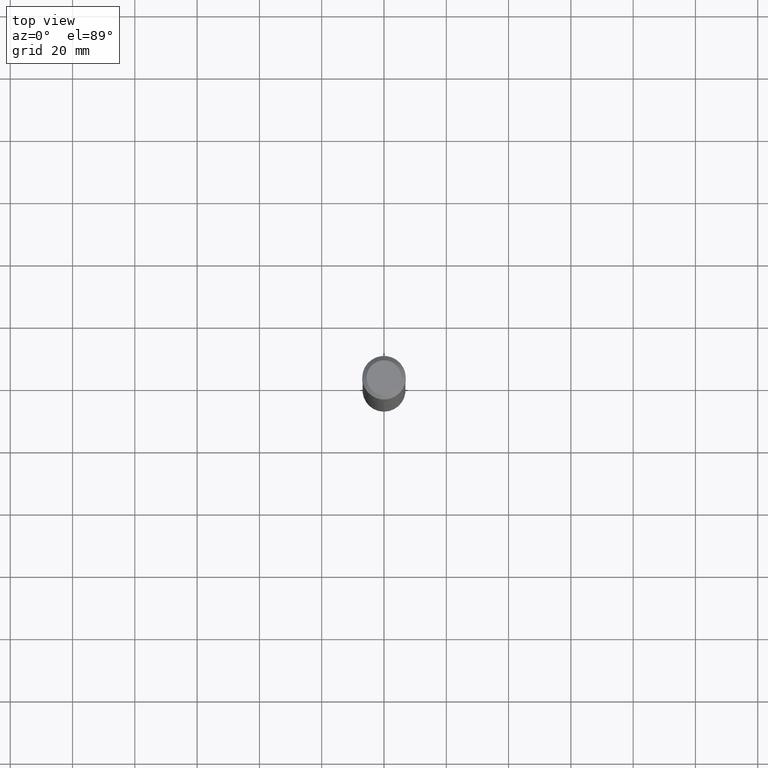
[diagram: clean part render]
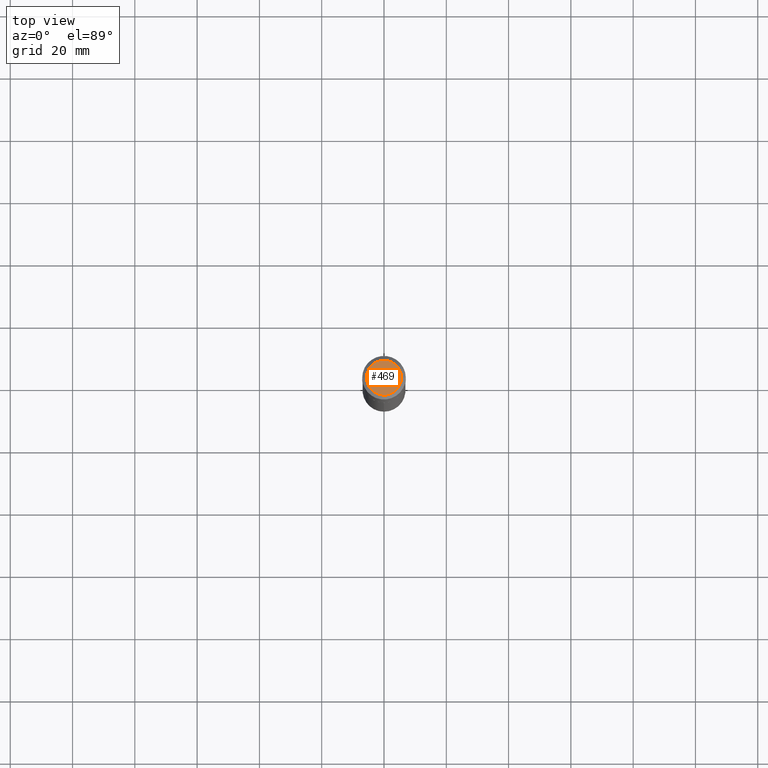
[diagram: same view with one face highlighted and labeled with its STEP entity id]
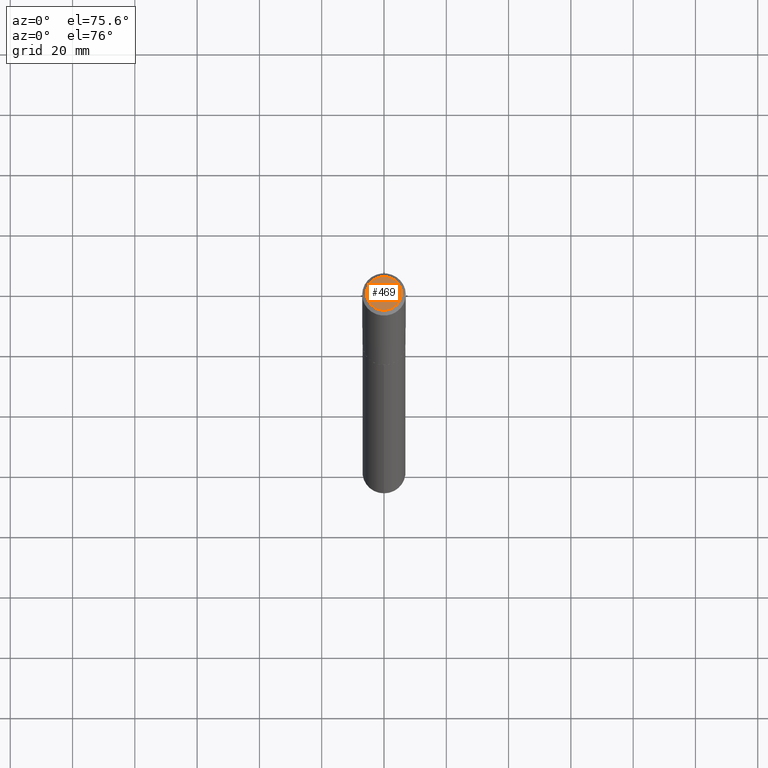
[diagram: same view with one face highlighted and labeled with its STEP entity id]
A machine part, top view. The second image highlights one B-rep face of the part: STEP entity #469.
A second angle (auxiliary view) of the same face is appended — the face is thin or edge-on in the first view.
In plain terms, the highlighted planar face has unit normal (0, -0, -1).
Its self-contained STEP definition (entity closure, byte-faithful):
#29 = CARTESIAN_POINT ( 'NONE',  ( -9.439721640706190018E-47, 1.347742071746724849E-32, 3.860086710912454339E-18 ) ) ;
#41 = ORIENTED_EDGE ( 'NONE', *, *, #115, .T. ) ;
#52 = ORIENTED_EDGE ( 'NONE', *, *, #121, .T. ) ;
#57 = CIRCLE ( 'NONE', #335, 0.2204800000000000093 ) ;
#64 = VERTEX_POINT ( 'NONE', #341 ) ;
#72 = DIRECTION ( 'NONE',  ( 2.438088387897960049E-29, -3.491481338843145188E-15, -1.000000000000000000 ) ) ;
#115 = EDGE_CURVE ( 'NONE', #64, #133, #410, .T. ) ;
#117 = AXIS2_PLACEMENT_3D ( 'NONE', #227, #72, #179 ) ;
#121 = EDGE_CURVE ( 'NONE', #133, #64, #57, .T. ) ;
#133 = VERTEX_POINT ( 'NONE', #472 ) ;
#175 = PLANE ( 'NONE',  #117 ) ;
#179 = DIRECTION ( 'NONE',  ( -1.000000000000000000, 6.982962677686265922E-15, -4.876176775795935793E-29 ) ) ;
#212 = CARTESIAN_POINT ( 'NONE',  ( -9.439721640706190018E-47, 1.347742071746724849E-32, 3.860086710912454339E-18 ) ) ;
#227 = CARTESIAN_POINT ( 'NONE',  ( -4.719860820353095009E-47, 6.738710358733624243E-33, 1.930043355456227170E-18 ) ) ;
#272 = AXIS2_PLACEMENT_3D ( 'NONE', #29, #409, #415 ) ;
#328 = FACE_OUTER_BOUND ( 'NONE', #435, .T. ) ;
#330 = DIRECTION ( 'NONE',  ( -2.445468806185136597E-29, 3.491481338843145583E-15, 1.000000000000000000 ) ) ;
#332 = DIRECTION ( 'NONE',  ( 1.000000000000000000, -6.982962677686266711E-15, 4.876132675269083677E-29 ) ) ;
#335 = AXIS2_PLACEMENT_3D ( 'NONE', #212, #330, #332 ) ;
#341 = CARTESIAN_POINT ( 'NONE',  ( 0.2204800000000000093, -1.797903149065768707E-15, 3.860086710924123164E-18 ) ) ;
#409 = DIRECTION ( 'NONE',  ( -2.445468806185136597E-29, 3.491481338843145583E-15, 1.000000000000000000 ) ) ;
#410 = CIRCLE ( 'NONE', #272, 0.2204800000000000093 ) ;
#415 = DIRECTION ( 'NONE',  ( 1.000000000000000000, -6.982962677686266711E-15, 4.876132675269083677E-29 ) ) ;
#435 = EDGE_LOOP ( 'NONE', ( #52, #41 ) ) ;
#469 = ADVANCED_FACE ( 'NONE', ( #328 ), #175, .F. ) ;
#472 = CARTESIAN_POINT ( 'NONE',  ( -0.2204800000000000093, 1.635828836874783961E-15, 3.860086710901350968E-18 ) ) ;